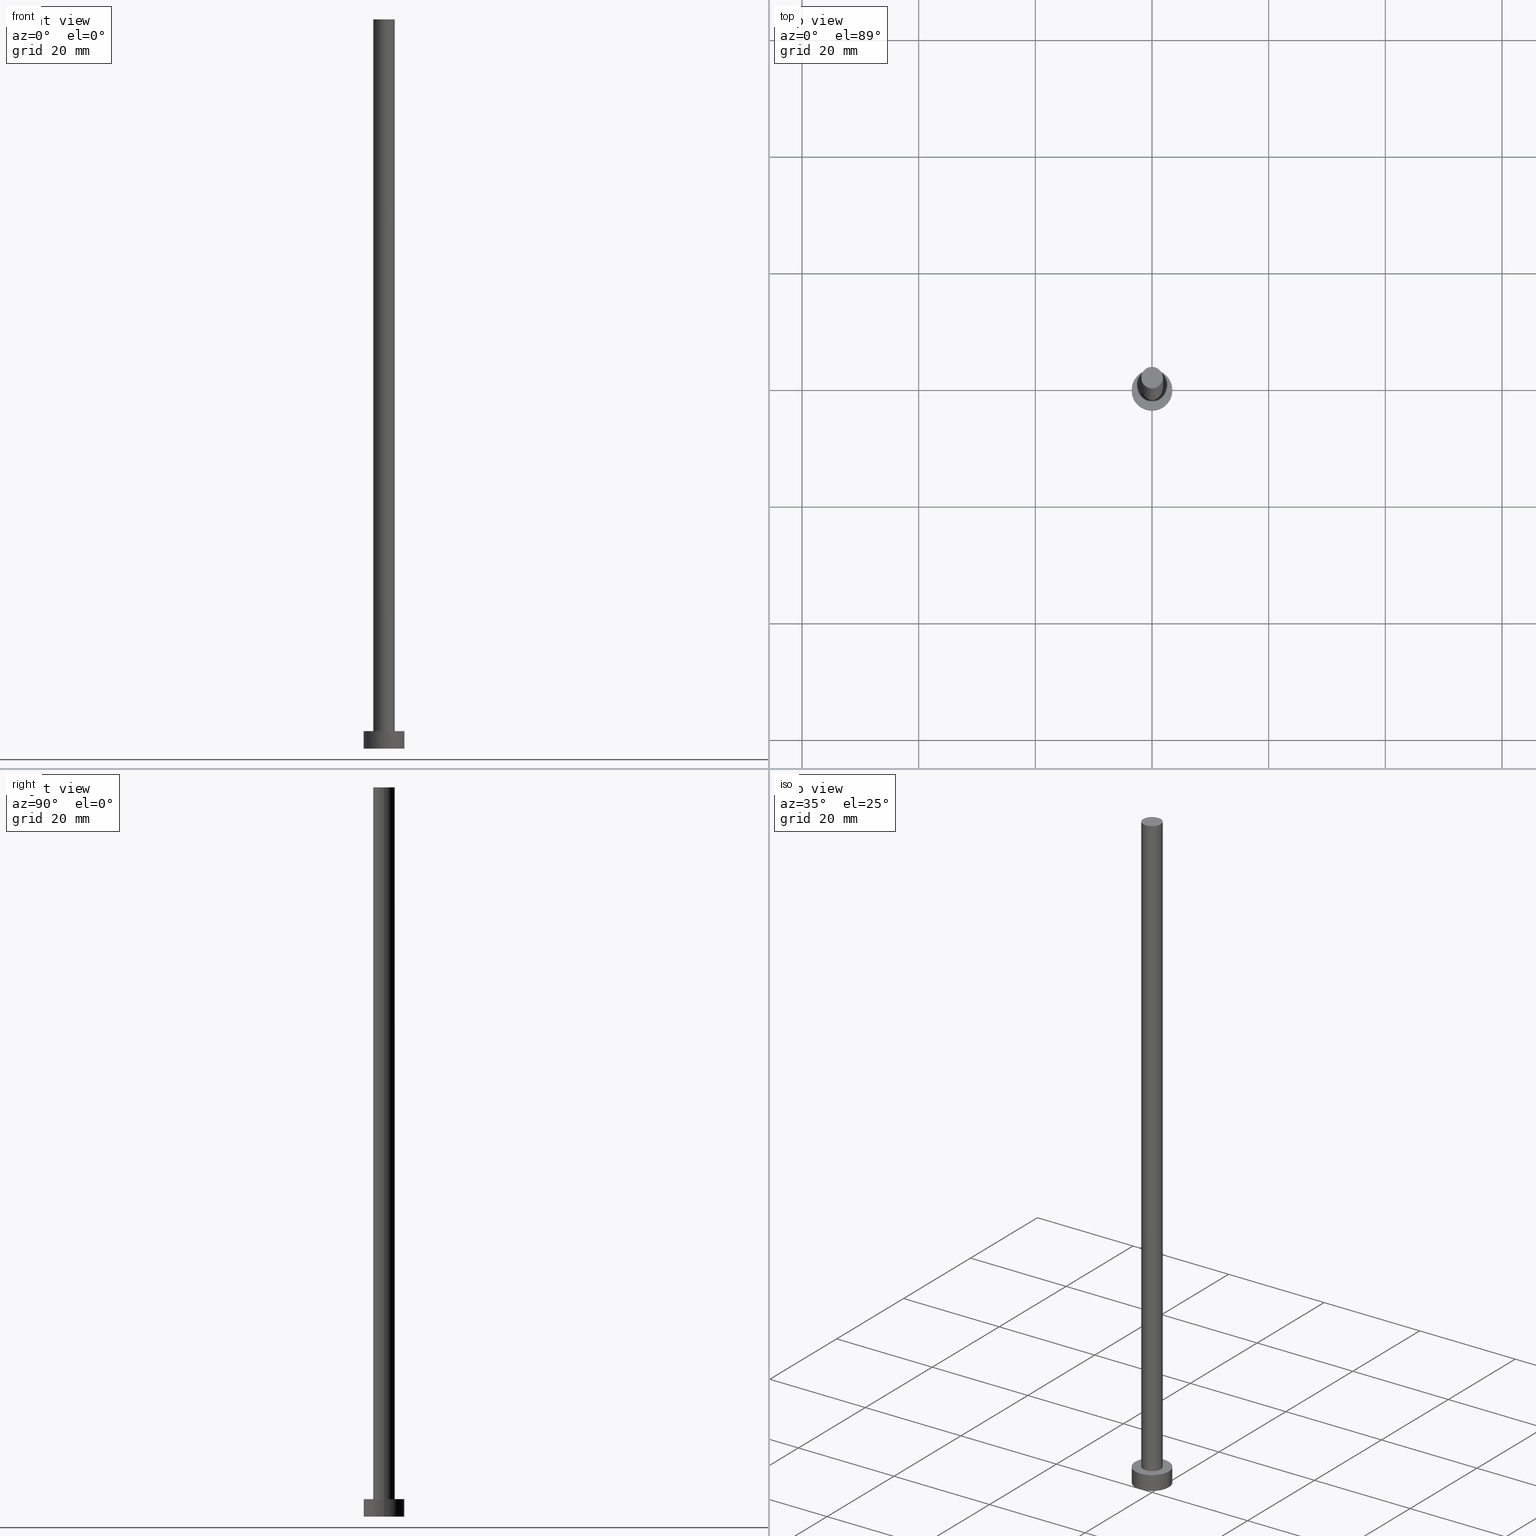
[diagram: canonical four-view strip — front | top / right | iso, engineering-drawing reading convention]
A machine part, canonical four-view strip (front | top / right | iso — engineering-drawing reading convention). The complete STEP part file that produces these views, byte-faithful:
ISO-10303-21;
HEADER;
FILE_DESCRIPTION (( 'STEP AP203' ),
    '1' );
FILE_NAME ('6fe3.STEP',
    '2026-02-11T15:51:19',
    ( '' ),
    ( '' ),
    'SwSTEP 2.0',
    'SolidWorks 2019',
    '' );
FILE_SCHEMA (( 'CONFIG_CONTROL_DESIGN' ));
ENDSEC;

DATA;
#1 = ADVANCED_FACE ( 'NONE', ( #8 ), #69, .T. ) ;
#2 = CC_DESIGN_PERSON_AND_ORGANIZATION_ASSIGNMENT ( #14, #220, ( #131 ) ) ;
#3 = DIRECTION ( 'NONE',  ( 0.000000000000000000, 0.000000000000000000, 1.000000000000000000 ) ) ;
#4 = ORIENTED_EDGE ( 'NONE', *, *, #170, .F. ) ;
#5 = CIRCLE ( 'NONE', #199, 1.850000000000000089 ) ;
#6 = ORIENTED_EDGE ( 'NONE', *, *, #148, .T. ) ;
#7 = CALENDAR_DATE ( 2026, 11, 2 ) ;
#8 = FACE_OUTER_BOUND ( 'NONE', #87, .T. ) ;
#9 = EDGE_LOOP ( 'NONE', ( #91, #26, #219, #108 ) ) ;
#10 = CARTESIAN_POINT ( 'NONE',  ( 0.000000000000000000, 0.000000000000000000, 0.000000000000000000 ) ) ;
#11 = PERSON_AND_ORGANIZATION ( #205, #123 ) ;
#12 = CARTESIAN_POINT ( 'NONE',  ( -3.500000000000000444, 0.000000000000000000, 3.000000000000000000 ) ) ;
#13 = APPROVAL_ROLE ( '' ) ;
#14 = PERSON_AND_ORGANIZATION ( #205, #123 ) ;
#15 = CARTESIAN_POINT ( 'NONE',  ( 0.000000000000000000, 0.000000000000000000, 125.0000000000000000 ) ) ;
#16 = APPROVAL_PERSON_ORGANIZATION ( #28, #232, #192 ) ;
#17 = VECTOR ( 'NONE', #49, 1000.000000000000000 ) ;
#18 = DIRECTION ( 'NONE',  ( 0.000000000000000000, 0.000000000000000000, 1.000000000000000000 ) ) ;
#19 = CARTESIAN_POINT ( 'NONE',  ( 1.850000000000000089, 2.265596578422602607E-16, 3.000000000000000000 ) ) ;
#20 = CC_DESIGN_DATE_AND_TIME_ASSIGNMENT ( #183, #90, ( #179 ) ) ;
#21 = CARTESIAN_POINT ( 'NONE',  ( -1.850000000000000089, 0.000000000000000000, 125.0000000000000000 ) ) ;
#22 = ORIENTED_EDGE ( 'NONE', *, *, #27, .T. ) ;
#23 = CIRCLE ( 'NONE', #204, 1.850000000000000089 ) ;
#24 = ORIENTED_EDGE ( 'NONE', *, *, #105, .T. ) ;
#25 = CALENDAR_DATE ( 2026, 11, 2 ) ;
#26 = ORIENTED_EDGE ( 'NONE', *, *, #236, .T. ) ;
#27 = EDGE_CURVE ( 'NONE', #181, #243, #145, .T. ) ;
#28 = PERSON_AND_ORGANIZATION ( #205, #123 ) ;
#29 = COORDINATED_UNIVERSAL_TIME_OFFSET ( 1, 0, .AHEAD. ) ;
#30 = PLANE ( 'NONE',  #227 ) ;
#31 = CARTESIAN_POINT ( 'NONE',  ( 1.850000000000000089, 2.265596578422602607E-16, 125.0000000000000000 ) ) ;
#32 = CYLINDRICAL_SURFACE ( 'NONE', #177, 3.500000000000000444 ) ;
#33 = PLANE ( 'NONE',  #50 ) ;
#34 = CIRCLE ( 'NONE', #99, 3.500000000000000444 ) ;
#35 = DIRECTION ( 'NONE',  ( -0.000000000000000000, -0.000000000000000000, -1.000000000000000000 ) ) ;
#36 = UNCERTAINTY_MEASURE_WITH_UNIT (LENGTH_MEASURE( 1.000000000000000082E-05 ), #72, 'distance_accuracy_value', 'NONE');
#37 = CYLINDRICAL_SURFACE ( 'NONE', #107, 3.500000000000000444 ) ;
#38 = PRODUCT_RELATED_PRODUCT_CATEGORY ( 'detail', '', ( #166 ) ) ;
#39 = AXIS2_PLACEMENT_3D ( 'NONE', #202, #73, #185 ) ;
#40 = CC_DESIGN_APPROVAL ( #119, ( #255 ) ) ;
#41 = DIRECTION ( 'NONE',  ( -1.000000000000000000, 0.000000000000000000, 0.000000000000000000 ) ) ;
#42 = LOCAL_TIME ( 16, 51, 19.00000000000000000, #184 ) ;
#43 = ORIENTED_EDGE ( 'NONE', *, *, #171, .T. ) ;
#44 = APPROVAL_PERSON_ORGANIZATION ( #245, #188, #150 ) ;
#45 = DIRECTION ( 'NONE',  ( -0.000000000000000000, -0.000000000000000000, -1.000000000000000000 ) ) ;
#46 = DIRECTION ( 'NONE',  ( 0.000000000000000000, 0.000000000000000000, 1.000000000000000000 ) ) ;
#47 = DATE_AND_TIME ( #225, #187 ) ;
#48 = DATE_AND_TIME ( #7, #42 ) ;
#49 = DIRECTION ( 'NONE',  ( -0.000000000000000000, -0.000000000000000000, -1.000000000000000000 ) ) ;
#50 = AXIS2_PLACEMENT_3D ( 'NONE', #104, #252, #153 ) ;
#51 = CARTESIAN_POINT ( 'NONE',  ( 1.850000000000000089, 2.265596578422602607E-16, 125.0000000000000000 ) ) ;
#52 = EDGE_CURVE ( 'NONE', #132, #70, #5, .T. ) ;
#53 = PERSON_AND_ORGANIZATION ( #205, #123 ) ;
#54 = CC_DESIGN_DATE_AND_TIME_ASSIGNMENT ( #47, #116, ( #255 ) ) ;
#55 = PERSON_AND_ORGANIZATION_ROLE ( 'classification_officer' ) ;
#56 = DIRECTION ( 'NONE',  ( 1.000000000000000000, 0.000000000000000000, -0.000000000000000000 ) ) ;
#57 = CARTESIAN_POINT ( 'NONE',  ( -3.500000000000000444, 0.000000000000000000, 0.000000000000000000 ) ) ;
#58 = ADVANCED_FACE ( 'NONE', ( #194 ), #138, .T. ) ;
#59 = FACE_OUTER_BOUND ( 'NONE', #63, .T. ) ;
#60 = CIRCLE ( 'NONE', #253, 1.850000000000000089 ) ;
#61 =( GEOMETRIC_REPRESENTATION_CONTEXT ( 3 ) GLOBAL_UNCERTAINTY_ASSIGNED_CONTEXT ( ( #36 ) ) GLOBAL_UNIT_ASSIGNED_CONTEXT ( ( #72, #228, #203 ) ) REPRESENTATION_CONTEXT ( 'NONE', 'WORKASPACE' ) );
#62 = AXIS2_PLACEMENT_3D ( 'NONE', #221, #45, #159 ) ;
#63 = EDGE_LOOP ( 'NONE', ( #65, #168, #24, #4 ) ) ;
#64 = DIRECTION ( 'NONE',  ( -0.000000000000000000, -0.000000000000000000, -1.000000000000000000 ) ) ;
#65 = ORIENTED_EDGE ( 'NONE', *, *, #248, .F. ) ;
#66 = EDGE_LOOP ( 'NONE', ( #43, #165 ) ) ;
#67 = SHAPE_DEFINITION_REPRESENTATION ( #128, #134 ) ;
#68 = COORDINATED_UNIVERSAL_TIME_OFFSET ( 1, 0, .AHEAD. ) ;
#69 = CYLINDRICAL_SURFACE ( 'NONE', #62, 1.850000000000000089 ) ;
#70 = VERTEX_POINT ( 'NONE', #139 ) ;
#71 = LINE ( 'NONE', #224, #17 ) ;
#72 =( LENGTH_UNIT ( ) NAMED_UNIT ( * ) SI_UNIT ( .MILLI., .METRE. ) );
#73 = DIRECTION ( 'NONE',  ( -0.000000000000000000, -0.000000000000000000, -1.000000000000000000 ) ) ;
#74 = APPLICATION_CONTEXT ( 'configuration controlled 3d designs of mechanical parts and assemblies' ) ;
#75 = COORDINATED_UNIVERSAL_TIME_OFFSET ( 1, 0, .AHEAD. ) ;
#76 = CC_DESIGN_PERSON_AND_ORGANIZATION_ASSIGNMENT ( #53, #186, ( #166 ) ) ;
#77 = PERSON_AND_ORGANIZATION_ROLE ( 'creator' ) ;
#78 = ADVANCED_FACE ( 'NONE', ( #208 ), #30, .F. ) ;
#79 = CARTESIAN_POINT ( 'NONE',  ( 3.500000000000000444, 4.286263797015737088E-16, 3.000000000000000000 ) ) ;
#80 = EDGE_CURVE ( 'NONE', #217, #201, #34, .T. ) ;
#81 = CC_DESIGN_APPROVAL ( #188, ( #179 ) ) ;
#82 = CARTESIAN_POINT ( 'NONE',  ( 0.000000000000000000, 0.000000000000000000, 3.000000000000000000 ) ) ;
#83 = LOCAL_TIME ( 16, 51, 19.00000000000000000, #97 ) ;
#84 = CARTESIAN_POINT ( 'NONE',  ( 0.000000000000000000, 0.000000000000000000, 3.000000000000000000 ) ) ;
#85 = DIRECTION ( 'NONE',  ( 1.000000000000000000, 0.000000000000000000, 0.000000000000000000 ) ) ;
#86 = ORIENTED_EDGE ( 'NONE', *, *, #155, .T. ) ;
#87 = EDGE_LOOP ( 'NONE', ( #126, #244, #6, #111 ) ) ;
#88 = APPROVAL_STATUS ( 'not_yet_approved' ) ;
#89 = ORIENTED_EDGE ( 'NONE', *, *, #80, .T. ) ;
#90 = DATE_TIME_ROLE ( 'classification_date' ) ;
#91 = ORIENTED_EDGE ( 'NONE', *, *, #155, .F. ) ;
#92 = DIRECTION ( 'NONE',  ( 1.000000000000000000, 0.000000000000000000, 0.000000000000000000 ) ) ;
#93 = PERSON_AND_ORGANIZATION ( #205, #123 ) ;
#94 = DIRECTION ( 'NONE',  ( 0.000000000000000000, 0.000000000000000000, 1.000000000000000000 ) ) ;
#95 = CALENDAR_DATE ( 2026, 11, 2 ) ;
#96 = MANIFOLD_SOLID_BREP ( 'P�idat vysunut�m3', #216 ) ;
#97 = COORDINATED_UNIVERSAL_TIME_OFFSET ( 1, 0, .AHEAD. ) ;
#98 = DIRECTION ( 'NONE',  ( 1.000000000000000000, 0.000000000000000000, 0.000000000000000000 ) ) ;
#99 = AXIS2_PLACEMENT_3D ( 'NONE', #246, #46, #189 ) ;
#100 = DIRECTION ( 'NONE',  ( 0.000000000000000000, 0.000000000000000000, 1.000000000000000000 ) ) ;
#101 = ADVANCED_FACE ( 'NONE', ( #133 ), #113, .T. ) ;
#102 = AXIS2_PLACEMENT_3D ( 'NONE', #250, #151, #223 ) ;
#103 = DIRECTION ( 'NONE',  ( 0.000000000000000000, 0.000000000000000000, 1.000000000000000000 ) ) ;
#104 = CARTESIAN_POINT ( 'NONE',  ( 0.000000000000000000, 0.000000000000000000, 3.000000000000000000 ) ) ;
#105 = EDGE_CURVE ( 'NONE', #201, #217, #120, .T. ) ;
#106 = VERTEX_POINT ( 'NONE', #12 ) ;
#107 = AXIS2_PLACEMENT_3D ( 'NONE', #84, #122, #41 ) ;
#108 = ORIENTED_EDGE ( 'NONE', *, *, #148, .F. ) ;
#109 = EDGE_LOOP ( 'NONE', ( #146, #129 ) ) ;
#110 = APPROVAL_DATE_TIME ( #135, #232 ) ;
#111 = ORIENTED_EDGE ( 'NONE', *, *, #195, .T. ) ;
#112 = APPROVAL_DATE_TIME ( #48, #188 ) ;
#113 = CYLINDRICAL_SURFACE ( 'NONE', #39, 1.850000000000000089 ) ;
#114 = APPLICATION_PROTOCOL_DEFINITION ( 'international standard', 'config_control_design', 1994, #241 ) ;
#115 = VECTOR ( 'NONE', #64, 1000.000000000000000 ) ;
#116 = DATE_TIME_ROLE ( 'creation_date' ) ;
#117 = DATE_AND_TIME ( #95, #235 ) ;
#118 = AXIS2_PLACEMENT_3D ( 'NONE', #190, #94, #173 ) ;
#119 = APPROVAL ( #191, 'NEUR�EN�' ) ;
#120 = CIRCLE ( 'NONE', #213, 3.500000000000000444 ) ;
#121 = DIRECTION ( 'NONE',  ( -1.000000000000000000, 0.000000000000000000, 0.000000000000000000 ) ) ;
#122 = DIRECTION ( 'NONE',  ( -0.000000000000000000, -0.000000000000000000, -1.000000000000000000 ) ) ;
#123 = ORGANIZATION ( 'NEUR�EN�', 'NEUR�EN�', '' ) ;
#124 = EDGE_CURVE ( 'NONE', #237, #201, #71, .T. ) ;
#125 = CC_DESIGN_APPROVAL ( #232, ( #131 ) ) ;
#126 = ORIENTED_EDGE ( 'NONE', *, *, #236, .F. ) ;
#127 = CARTESIAN_POINT ( 'NONE',  ( 0.000000000000000000, 0.000000000000000000, 125.0000000000000000 ) ) ;
#128 = PRODUCT_DEFINITION_SHAPE ( 'NONE', 'NONE',  #255 ) ;
#129 = ORIENTED_EDGE ( 'NONE', *, *, #52, .F. ) ;
#130 = VECTOR ( 'NONE', #254, 1000.000000000000000 ) ;
#131 = PRODUCT_DEFINITION_FORMATION_WITH_SPECIFIED_SOURCE ( 'LIBOVOLN�', '', #166, .NOT_KNOWN. ) ;
#132 = VERTEX_POINT ( 'NONE', #19 ) ;
#133 = FACE_OUTER_BOUND ( 'NONE', #9, .T. ) ;
#134 = ADVANCED_BREP_SHAPE_REPRESENTATION ( '6fe3', ( #96, #102 ), #61 ) ;
#135 = DATE_AND_TIME ( #167, #83 ) ;
#136 = ADVANCED_FACE ( 'NONE', ( #215 ), #37, .T. ) ;
#137 = CC_DESIGN_SECURITY_CLASSIFICATION ( #179, ( #131 ) ) ;
#138 = PLANE ( 'NONE',  #196 ) ;
#139 = CARTESIAN_POINT ( 'NONE',  ( -1.850000000000000089, 0.000000000000000000, 3.000000000000000000 ) ) ;
#140 = CARTESIAN_POINT ( 'NONE',  ( 0.000000000000000000, 0.000000000000000000, 3.000000000000000000 ) ) ;
#141 = CIRCLE ( 'NONE', #118, 3.500000000000000444 ) ;
#142 = DIRECTION ( 'NONE',  ( 1.000000000000000000, 0.000000000000000000, 0.000000000000000000 ) ) ;
#143 = AXIS2_PLACEMENT_3D ( 'NONE', #82, #18, #234 ) ;
#144 = DESIGN_CONTEXT ( 'detailed design', #74, 'design' ) ;
#145 = CIRCLE ( 'NONE', #157, 1.850000000000000089 ) ;
#146 = ORIENTED_EDGE ( 'NONE', *, *, #195, .F. ) ;
#147 = DIRECTION ( 'NONE',  ( -0.000000000000000000, -0.000000000000000000, -1.000000000000000000 ) ) ;
#148 = EDGE_CURVE ( 'NONE', #181, #70, #197, .T. ) ;
#149 = ORIENTED_EDGE ( 'NONE', *, *, #170, .T. ) ;
#150 = APPROVAL_ROLE ( '' ) ;
#151 = DIRECTION ( 'NONE',  ( 0.000000000000000000, 0.000000000000000000, 1.000000000000000000 ) ) ;
#152 = ORIENTED_EDGE ( 'NONE', *, *, #124, .F. ) ;
#153 = DIRECTION ( 'NONE',  ( 1.000000000000000000, 0.000000000000000000, -0.000000000000000000 ) ) ;
#154 = DIRECTION ( 'NONE',  ( 0.000000000000000000, 0.000000000000000000, 1.000000000000000000 ) ) ;
#155 = EDGE_CURVE ( 'NONE', #243, #181, #23, .T. ) ;
#156 = APPROVAL_STATUS ( 'not_yet_approved' ) ;
#157 = AXIS2_PLACEMENT_3D ( 'NONE', #160, #230, #98 ) ;
#158 = MECHANICAL_CONTEXT ( 'NONE', #241, 'mechanical' ) ;
#159 = DIRECTION ( 'NONE',  ( -1.000000000000000000, 0.000000000000000000, 0.000000000000000000 ) ) ;
#160 = CARTESIAN_POINT ( 'NONE',  ( 0.000000000000000000, 0.000000000000000000, 125.0000000000000000 ) ) ;
#161 = APPROVAL_PERSON_ORGANIZATION ( #11, #119, #13 ) ;
#162 = CARTESIAN_POINT ( 'NONE',  ( -1.850000000000000089, 0.000000000000000000, 125.0000000000000000 ) ) ;
#163 = CIRCLE ( 'NONE', #143, 3.500000000000000444 ) ;
#164 = LINE ( 'NONE', #239, #249 ) ;
#165 = ORIENTED_EDGE ( 'NONE', *, *, #248, .T. ) ;
#166 = PRODUCT ( '6fe3', '6fe3', '', ( #158 ) ) ;
#167 = CALENDAR_DATE ( 2026, 11, 2 ) ;
#168 = ORIENTED_EDGE ( 'NONE', *, *, #124, .T. ) ;
#169 = PERSON_AND_ORGANIZATION_ROLE ( 'creator' ) ;
#170 = EDGE_CURVE ( 'NONE', #106, #217, #164, .T. ) ;
#171 = EDGE_CURVE ( 'NONE', #106, #237, #163, .T. ) ;
#172 = CC_DESIGN_PERSON_AND_ORGANIZATION_ASSIGNMENT ( #229, #55, ( #179 ) ) ;
#173 = DIRECTION ( 'NONE',  ( 1.000000000000000000, 0.000000000000000000, 0.000000000000000000 ) ) ;
#174 = SECURITY_CLASSIFICATION_LEVEL ( 'unclassified' ) ;
#175 = CARTESIAN_POINT ( 'NONE',  ( 0.000000000000000000, 0.000000000000000000, 0.000000000000000000 ) ) ;
#176 = DIRECTION ( 'NONE',  ( 0.000000000000000000, 0.000000000000000000, 1.000000000000000000 ) ) ;
#177 = AXIS2_PLACEMENT_3D ( 'NONE', #214, #35, #121 ) ;
#178 = LINE ( 'NONE', #31, #130 ) ;
#179 = SECURITY_CLASSIFICATION ( '', '', #174 ) ;
#180 = ORIENTED_EDGE ( 'NONE', *, *, #171, .F. ) ;
#181 = VERTEX_POINT ( 'NONE', #162 ) ;
#182 = EDGE_LOOP ( 'NONE', ( #152, #180, #149, #89 ) ) ;
#183 = DATE_AND_TIME ( #25, #209 ) ;
#184 = COORDINATED_UNIVERSAL_TIME_OFFSET ( 1, 0, .AHEAD. ) ;
#185 = DIRECTION ( 'NONE',  ( -1.000000000000000000, 0.000000000000000000, 0.000000000000000000 ) ) ;
#186 = PERSON_AND_ORGANIZATION_ROLE ( 'design_owner' ) ;
#187 = LOCAL_TIME ( 16, 51, 19.00000000000000000, #75 ) ;
#188 = APPROVAL ( #88, 'NEUR�EN�' ) ;
#189 = DIRECTION ( 'NONE',  ( 1.000000000000000000, 0.000000000000000000, 0.000000000000000000 ) ) ;
#190 = CARTESIAN_POINT ( 'NONE',  ( 0.000000000000000000, 0.000000000000000000, 3.000000000000000000 ) ) ;
#191 = APPROVAL_STATUS ( 'not_yet_approved' ) ;
#192 = APPROVAL_ROLE ( '' ) ;
#193 = DIRECTION ( 'NONE',  ( 1.000000000000000000, 0.000000000000000000, 0.000000000000000000 ) ) ;
#194 = FACE_OUTER_BOUND ( 'NONE', #218, .T. ) ;
#195 = EDGE_CURVE ( 'NONE', #70, #132, #60, .T. ) ;
#196 = AXIS2_PLACEMENT_3D ( 'NONE', #15, #231, #56 ) ;
#197 = LINE ( 'NONE', #21, #115 ) ;
#198 = EDGE_LOOP ( 'NONE', ( #240, #242 ) ) ;
#199 = AXIS2_PLACEMENT_3D ( 'NONE', #207, #100, #193 ) ;
#200 = APPLICATION_PROTOCOL_DEFINITION ( 'international standard', 'config_control_design', 1994, #74 ) ;
#201 = VERTEX_POINT ( 'NONE', #211 ) ;
#202 = CARTESIAN_POINT ( 'NONE',  ( 0.000000000000000000, 0.000000000000000000, 125.0000000000000000 ) ) ;
#203 =( NAMED_UNIT ( * ) SI_UNIT ( $, .STERADIAN. ) SOLID_ANGLE_UNIT ( ) );
#204 = AXIS2_PLACEMENT_3D ( 'NONE', #127, #3, #85 ) ;
#205 = PERSON ( 'NEUR�EN�', 'NEUR�EN�', 'NEUR�EN�', ('NEUR�EN�'), ('NEUR�EN�'), ('NEUR�EN�') ) ;
#206 = APPROVAL_DATE_TIME ( #117, #119 ) ;
#207 = CARTESIAN_POINT ( 'NONE',  ( 0.000000000000000000, 0.000000000000000000, 3.000000000000000000 ) ) ;
#208 = FACE_OUTER_BOUND ( 'NONE', #198, .T. ) ;
#209 = LOCAL_TIME ( 16, 51, 19.00000000000000000, #68 ) ;
#210 = ADVANCED_FACE ( 'NONE', ( #59 ), #32, .T. ) ;
#211 = CARTESIAN_POINT ( 'NONE',  ( 3.500000000000000444, 4.286263797015737088E-16, 0.000000000000000000 ) ) ;
#212 = FACE_OUTER_BOUND ( 'NONE', #66, .T. ) ;
#213 = AXIS2_PLACEMENT_3D ( 'NONE', #10, #154, #92 ) ;
#214 = CARTESIAN_POINT ( 'NONE',  ( 0.000000000000000000, 0.000000000000000000, 3.000000000000000000 ) ) ;
#215 = FACE_OUTER_BOUND ( 'NONE', #182, .T. ) ;
#216 = CLOSED_SHELL ( 'NONE', ( #101, #210, #136, #238, #78, #1, #58 ) ) ;
#217 = VERTEX_POINT ( 'NONE', #57 ) ;
#218 = EDGE_LOOP ( 'NONE', ( #22, #86 ) ) ;
#219 = ORIENTED_EDGE ( 'NONE', *, *, #52, .T. ) ;
#220 = PERSON_AND_ORGANIZATION_ROLE ( 'design_supplier' ) ;
#221 = CARTESIAN_POINT ( 'NONE',  ( 0.000000000000000000, 0.000000000000000000, 125.0000000000000000 ) ) ;
#222 = CC_DESIGN_PERSON_AND_ORGANIZATION_ASSIGNMENT ( #93, #169, ( #131 ) ) ;
#223 = DIRECTION ( 'NONE',  ( 1.000000000000000000, 0.000000000000000000, 0.000000000000000000 ) ) ;
#224 = CARTESIAN_POINT ( 'NONE',  ( 3.500000000000000444, 4.286263797015737088E-16, 3.000000000000000000 ) ) ;
#225 = CALENDAR_DATE ( 2026, 11, 2 ) ;
#226 = DIRECTION ( 'NONE',  ( 1.000000000000000000, 0.000000000000000000, -0.000000000000000000 ) ) ;
#227 = AXIS2_PLACEMENT_3D ( 'NONE', #175, #176, #226 ) ;
#228 =( NAMED_UNIT ( * ) PLANE_ANGLE_UNIT ( ) SI_UNIT ( $, .RADIAN. ) );
#229 = PERSON_AND_ORGANIZATION ( #205, #123 ) ;
#230 = DIRECTION ( 'NONE',  ( 0.000000000000000000, 0.000000000000000000, 1.000000000000000000 ) ) ;
#231 = DIRECTION ( 'NONE',  ( 0.000000000000000000, 0.000000000000000000, 1.000000000000000000 ) ) ;
#232 = APPROVAL ( #156, 'NEUR�EN�' ) ;
#233 = FACE_BOUND ( 'NONE', #109, .T. ) ;
#234 = DIRECTION ( 'NONE',  ( 1.000000000000000000, 0.000000000000000000, 0.000000000000000000 ) ) ;
#235 = LOCAL_TIME ( 16, 51, 19.00000000000000000, #29 ) ;
#236 = EDGE_CURVE ( 'NONE', #243, #132, #178, .T. ) ;
#237 = VERTEX_POINT ( 'NONE', #79 ) ;
#238 = ADVANCED_FACE ( 'NONE', ( #233, #212 ), #33, .T. ) ;
#239 = CARTESIAN_POINT ( 'NONE',  ( -3.500000000000000444, 0.000000000000000000, 3.000000000000000000 ) ) ;
#240 = ORIENTED_EDGE ( 'NONE', *, *, #80, .F. ) ;
#241 = APPLICATION_CONTEXT ( 'configuration controlled 3d designs of mechanical parts and assemblies' ) ;
#242 = ORIENTED_EDGE ( 'NONE', *, *, #105, .F. ) ;
#243 = VERTEX_POINT ( 'NONE', #51 ) ;
#244 = ORIENTED_EDGE ( 'NONE', *, *, #27, .F. ) ;
#245 = PERSON_AND_ORGANIZATION ( #205, #123 ) ;
#246 = CARTESIAN_POINT ( 'NONE',  ( 0.000000000000000000, 0.000000000000000000, 0.000000000000000000 ) ) ;
#247 = PERSON_AND_ORGANIZATION ( #205, #123 ) ;
#248 = EDGE_CURVE ( 'NONE', #237, #106, #141, .T. ) ;
#249 = VECTOR ( 'NONE', #147, 1000.000000000000000 ) ;
#250 = CARTESIAN_POINT ( 'NONE',  ( 0.000000000000000000, 0.000000000000000000, 0.000000000000000000 ) ) ;
#251 = CC_DESIGN_PERSON_AND_ORGANIZATION_ASSIGNMENT ( #247, #77, ( #255 ) ) ;
#252 = DIRECTION ( 'NONE',  ( 0.000000000000000000, 0.000000000000000000, 1.000000000000000000 ) ) ;
#253 = AXIS2_PLACEMENT_3D ( 'NONE', #140, #103, #142 ) ;
#254 = DIRECTION ( 'NONE',  ( -0.000000000000000000, -0.000000000000000000, -1.000000000000000000 ) ) ;
#255 = PRODUCT_DEFINITION ( 'NEZN�M�', '', #131, #144 ) ;
ENDSEC;
END-ISO-10303-21;
